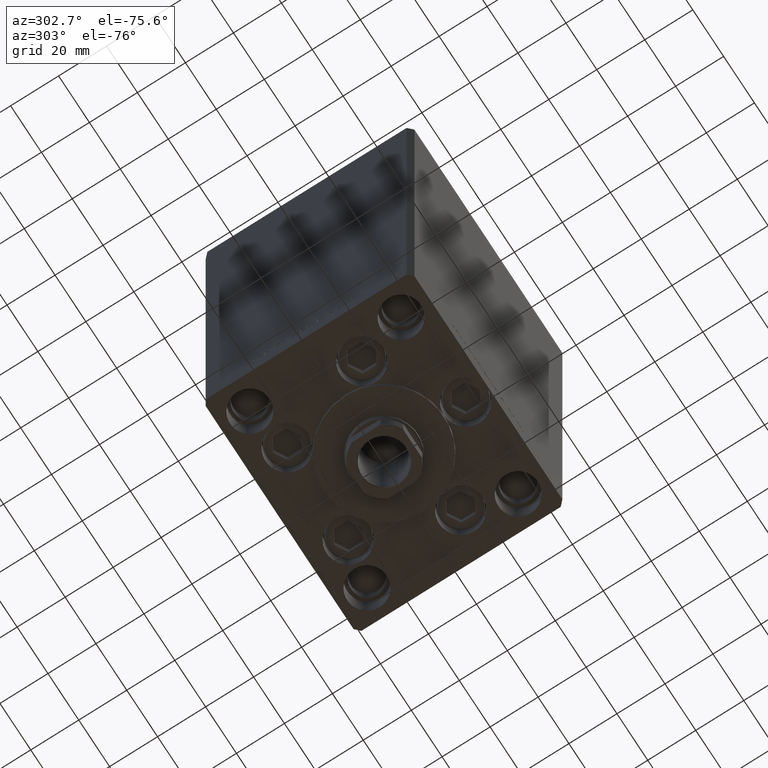
[diagram: clean part render]
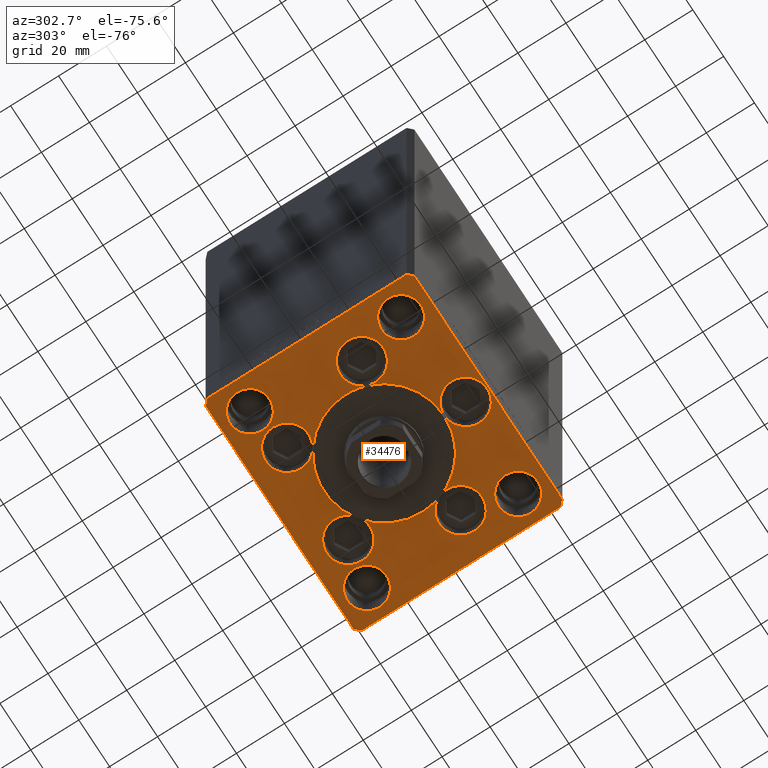
[diagram: same view with one face highlighted and labeled with its STEP entity id]
A machine part, auxiliary view. The second image highlights one B-rep face of the part: STEP entity #34476.
In plain terms, the highlighted planar face has unit normal (0, 0, -1).
Its self-contained STEP definition (entity closure, byte-faithful):
#78 = CARTESIAN_POINT ( 'NONE',  ( 38.00000000000000711, -31.50000000000000711, 0.000000000000000000 ) ) ;
#311 = CARTESIAN_POINT ( 'NONE',  ( 0.000000000000000000, 0.000000000000000000, 0.000000000000000000 ) ) ;
#435 = VECTOR ( 'NONE', #16392, 1000.000000000000000 ) ;
#843 = ORIENTED_EDGE ( 'NONE', *, *, #30643, .T. ) ;
#1183 = EDGE_CURVE ( 'NONE', #2028, #29542, #36587, .T. ) ;
#1202 = CIRCLE ( 'NONE', #40127, 8.250000000000000000 ) ;
#1228 = ORIENTED_EDGE ( 'NONE', *, *, #42391, .F. ) ;
#1289 = VERTEX_POINT ( 'NONE', #11761 ) ;
#1407 = EDGE_CURVE ( 'NONE', #6077, #37529, #37827, .T. ) ;
#1519 = DIRECTION ( 'NONE',  ( 0.000000000000000000, 0.000000000000000000, 1.000000000000000000 ) ) ;
#1593 = CARTESIAN_POINT ( 'NONE',  ( 0.000000000000000000, -34.00000000000000000, 0.000000000000000000 ) ) ;
#2012 = AXIS2_PLACEMENT_3D ( 'NONE', #12723, #38862, #31408 ) ;
#2028 = VERTEX_POINT ( 'NONE', #2693 ) ;
#2046 = VECTOR ( 'NONE', #27053, 1000.000000000000000 ) ;
#2312 = ORIENTED_EDGE ( 'NONE', *, *, #18062, .F. ) ;
#2693 = CARTESIAN_POINT ( 'NONE',  ( 46.25000000000000000, -31.50000000000000711, 0.000000000000000000 ) ) ;
#2702 = CIRCLE ( 'NONE', #18612, 8.250000000000000000 ) ;
#2859 = DIRECTION ( 'NONE',  ( 1.000000000000000000, 0.000000000000000000, 0.000000000000000000 ) ) ;
#2946 = AXIS2_PLACEMENT_3D ( 'NONE', #311, #45835, #11747 ) ;
#3104 = EDGE_CURVE ( 'NONE', #11535, #26076, #16265, .T. ) ;
#3183 = DIRECTION ( 'NONE',  ( 1.000000000000000000, 0.000000000000000000, 0.000000000000000000 ) ) ;
#3284 = CARTESIAN_POINT ( 'NONE',  ( -46.25000000000000000, 31.50000000000000000, 0.000000000000000000 ) ) ;
#3448 = DIRECTION ( 'NONE',  ( 1.000000000000000000, 0.000000000000000000, 0.000000000000000000 ) ) ;
#3584 = EDGE_CURVE ( 'NONE', #17269, #11535, #21025, .T. ) ;
#3978 = DIRECTION ( 'NONE',  ( 0.000000000000000000, 0.000000000000000000, 1.000000000000000000 ) ) ;
#4127 = DIRECTION ( 'NONE',  ( 0.000000000000000000, 0.000000000000000000, 1.000000000000000000 ) ) ;
#4385 = DIRECTION ( 'NONE',  ( 1.000000000000000000, 0.000000000000000000, 0.000000000000000000 ) ) ;
#4733 = EDGE_CURVE ( 'NONE', #11163, #5179, #2702, .T. ) ;
#4923 = CARTESIAN_POINT ( 'NONE',  ( 9.000000000000000000, -34.00000000000000000, 0.000000000000000000 ) ) ;
#4975 = CARTESIAN_POINT ( 'NONE',  ( -41.05550741379015989, -11.33333333333332682, 0.000000000000000000 ) ) ;
#5179 = VERTEX_POINT ( 'NONE', #17534 ) ;
#5208 = AXIS2_PLACEMENT_3D ( 'NONE', #11947, #27135, #30872 ) ;
#5214 = ORIENTED_EDGE ( 'NONE', *, *, #20766, .F. ) ;
#5337 = LINE ( 'NONE', #9065, #26223 ) ;
#5472 = ORIENTED_EDGE ( 'NONE', *, *, #29048, .T. ) ;
#5483 = AXIS2_PLACEMENT_3D ( 'NONE', #9711, #35844, #13438 ) ;
#5524 = AXIS2_PLACEMENT_3D ( 'NONE', #32899, #28915, #44337 ) ;
#5976 = DIRECTION ( 'NONE',  ( 1.000000000000000000, 0.000000000000000000, 0.000000000000000000 ) ) ;
#5995 = DIRECTION ( 'NONE',  ( 1.000000000000000000, 0.000000000000000000, 0.000000000000000000 ) ) ;
#6077 = VERTEX_POINT ( 'NONE', #41633 ) ;
#6481 = EDGE_CURVE ( 'NONE', #37621, #33386, #7507, .T. ) ;
#6597 = CARTESIAN_POINT ( 'NONE',  ( 0.000000000000000000, -6.938893903907228378E-15, 0.000000000000000000 ) ) ;
#6676 = VECTOR ( 'NONE', #37775, 1000.000000000000000 ) ;
#6697 = DIRECTION ( 'NONE',  ( 0.000000000000000000, 0.000000000000000000, 1.000000000000000000 ) ) ;
#6968 = DIRECTION ( 'NONE',  ( 1.000000000000000000, 0.000000000000000000, 0.000000000000000000 ) ) ;
#7032 = DIRECTION ( 'NONE',  ( 1.000000000000000000, 0.000000000000000000, 0.000000000000000000 ) ) ;
#7255 = DIRECTION ( 'NONE',  ( 0.7071067811865474617, 0.7071067811865474617, 0.000000000000000000 ) ) ;
#7275 = DIRECTION ( 'NONE',  ( 0.000000000000000000, 0.000000000000000000, 1.000000000000000000 ) ) ;
#7279 = VERTEX_POINT ( 'NONE', #31451 ) ;
#7306 = CARTESIAN_POINT ( 'NONE',  ( -28.82068048781374969, 27.62499999999998934, 0.000000000000000000 ) ) ;
#7419 = VERTEX_POINT ( 'NONE', #36065 ) ;
#7507 = CIRCLE ( 'NONE', #48055, 8.250000000000000000 ) ;
#7512 = AXIS2_PLACEMENT_3D ( 'NONE', #25437, #10480, #5995 ) ;
#7754 = FACE_BOUND ( 'NONE', #33850, .T. ) ;
#7883 = ORIENTED_EDGE ( 'NONE', *, *, #29764, .F. ) ;
#8045 = EDGE_CURVE ( 'NONE', #1289, #11095, #29066, .T. ) ;
#8231 = VERTEX_POINT ( 'NONE', #44071 ) ;
#8259 = DIRECTION ( 'NONE',  ( 1.000000000000000000, 0.000000000000000000, 0.000000000000000000 ) ) ;
#8326 = EDGE_CURVE ( 'NONE', #28037, #44730, #13161, .T. ) ;
#8403 = CIRCLE ( 'NONE', #31483, 25.00000000000000000 ) ;
#8449 = DIRECTION ( 'NONE',  ( 1.000000000000000000, 0.000000000000000000, 0.000000000000000000 ) ) ;
#8489 = FACE_OUTER_BOUND ( 'NONE', #20148, .T. ) ;
#8578 = DIRECTION ( 'NONE',  ( 0.000000000000000000, 0.000000000000000000, 1.000000000000000000 ) ) ;
#8709 = VERTEX_POINT ( 'NONE', #32523 ) ;
#8813 = EDGE_CURVE ( 'NONE', #45530, #42996, #24298, .T. ) ;
#9024 = CARTESIAN_POINT ( 'NONE',  ( -46.25000000000000711, -31.50000000000000711, 0.000000000000000000 ) ) ;
#9065 = CARTESIAN_POINT ( 'NONE',  ( 47.99999999999999289, 43.50000000000000000, 0.000000000000000000 ) ) ;
#9293 = DIRECTION ( 'NONE',  ( 0.000000000000000000, 0.000000000000000000, 1.000000000000000000 ) ) ;
#9459 = AXIS2_PLACEMENT_3D ( 'NONE', #19142, #24107, #23622 ) ;
#9660 = VERTEX_POINT ( 'NONE', #34471 ) ;
#9711 = CARTESIAN_POINT ( 'NONE',  ( 32.05550741379015989, -11.33333333333332860, 0.000000000000000000 ) ) ;
#9725 = DIRECTION ( 'NONE',  ( 1.000000000000000000, 0.000000000000000000, 0.000000000000000000 ) ) ;
#10083 = ORIENTED_EDGE ( 'NONE', *, *, #44489, .F. ) ;
#10276 = DIRECTION ( 'NONE',  ( 1.000000000000000000, 0.000000000000000000, 0.000000000000000000 ) ) ;
#10470 = AXIS2_PLACEMENT_3D ( 'NONE', #1593, #9293, #20751 ) ;
#10480 = DIRECTION ( 'NONE',  ( 0.000000000000000000, 0.000000000000000000, 1.000000000000000000 ) ) ;
#10481 = ORIENTED_EDGE ( 'NONE', *, *, #3584, .F. ) ;
#10719 = CARTESIAN_POINT ( 'NONE',  ( -48.00000000000000000, 43.49999999999997158, 0.000000000000000000 ) ) ;
#10723 = DIRECTION ( 'NONE',  ( 1.000000000000000000, 0.000000000000000000, 0.000000000000000000 ) ) ;
#10949 = ORIENTED_EDGE ( 'NONE', *, *, #31489, .F. ) ;
#11017 = DIRECTION ( 'NONE',  ( 0.000000000000000000, 0.000000000000000000, 1.000000000000000000 ) ) ;
#11095 = VERTEX_POINT ( 'NONE', #33886 ) ;
#11163 = VERTEX_POINT ( 'NONE', #3284 ) ;
#11535 = VERTEX_POINT ( 'NONE', #47663 ) ;
#11581 = LINE ( 'NONE', #15072, #39797 ) ;
#11585 = EDGE_CURVE ( 'NONE', #26076, #20339, #14064, .T. ) ;
#11747 = DIRECTION ( 'NONE',  ( 1.000000000000000000, 0.000000000000000000, 0.000000000000000000 ) ) ;
#11761 = CARTESIAN_POINT ( 'NONE',  ( 46.25000000000000000, 31.50000000000000000, 0.000000000000000000 ) ) ;
#11839 = DIRECTION ( 'NONE',  ( 1.000000000000000000, 0.000000000000000000, 0.000000000000000000 ) ) ;
#11947 = CARTESIAN_POINT ( 'NONE',  ( 19.82068048781374969, 27.62499999999998934, 0.000000000000000000 ) ) ;
#11958 = CARTESIAN_POINT ( 'NONE',  ( 0.000000000000000000, -34.00000000000000000, 0.000000000000000000 ) ) ;
#12093 = CARTESIAN_POINT ( 'NONE',  ( -23.05550741379015633, -11.33333333333332860, 0.000000000000000000 ) ) ;
#12188 = CARTESIAN_POINT ( 'NONE',  ( -50.00000000000000711, 41.49999999999999289, 0.000000000000000000 ) ) ;
#12352 = ORIENTED_EDGE ( 'NONE', *, *, #3104, .F. ) ;
#12355 = CIRCLE ( 'NONE', #5208, 8.999999999999998224 ) ;
#12605 = VERTEX_POINT ( 'NONE', #17007 ) ;
#12723 = CARTESIAN_POINT ( 'NONE',  ( 38.00000000000000000, 31.50000000000000000, 0.000000000000000000 ) ) ;
#13140 = LINE ( 'NONE', #36544, #435 ) ;
#13161 = CIRCLE ( 'NONE', #20309, 9.000000000000000000 ) ;
#13190 = EDGE_CURVE ( 'NONE', #14190, #17471, #38742, .T. ) ;
#13366 = AXIS2_PLACEMENT_3D ( 'NONE', #33282, #37252, #40976 ) ;
#13387 = ORIENTED_EDGE ( 'NONE', *, *, #42367, .F. ) ;
#13438 = DIRECTION ( 'NONE',  ( 1.000000000000000000, 0.000000000000000000, 0.000000000000000000 ) ) ;
#13507 = CARTESIAN_POINT ( 'NONE',  ( 10.82068048781375147, 27.62499999999998934, 0.000000000000000000 ) ) ;
#13834 = ORIENTED_EDGE ( 'NONE', *, *, #38762, .F. ) ;
#14064 = CIRCLE ( 'NONE', #20408, 9.000000000000000000 ) ;
#14190 = VERTEX_POINT ( 'NONE', #25177 ) ;
#14578 = DIRECTION ( 'NONE',  ( 1.000000000000000000, 0.000000000000000000, 0.000000000000000000 ) ) ;
#14982 = AXIS2_PLACEMENT_3D ( 'NONE', #29134, #19081, #5976 ) ;
#15072 = CARTESIAN_POINT ( 'NONE',  ( 50.00000000000000000, 41.50000000000000711, 0.000000000000000000 ) ) ;
#15178 = ORIENTED_EDGE ( 'NONE', *, *, #27459, .F. ) ;
#15188 = ORIENTED_EDGE ( 'NONE', *, *, #8045, .F. ) ;
#15433 = CARTESIAN_POINT ( 'NONE',  ( 32.05550741379015989, -11.33333333333332860, 0.000000000000000000 ) ) ;
#15620 = EDGE_CURVE ( 'NONE', #37529, #15842, #19414, .T. ) ;
#15842 = VERTEX_POINT ( 'NONE', #32846 ) ;
#16265 = CIRCLE ( 'NONE', #7512, 9.000000000000000000 ) ;
#16392 = DIRECTION ( 'NONE',  ( 0.000000000000000000, 1.000000000000000000, 0.000000000000000000 ) ) ;
#16942 = DIRECTION ( 'NONE',  ( 1.000000000000000000, 0.000000000000000000, 0.000000000000000000 ) ) ;
#17007 = CARTESIAN_POINT ( 'NONE',  ( 50.00000000000000000, 41.50000000000000711, 0.000000000000000000 ) ) ;
#17258 = CIRCLE ( 'NONE', #45067, 25.00000000000000000 ) ;
#17269 = VERTEX_POINT ( 'NONE', #48617 ) ;
#17385 = CARTESIAN_POINT ( 'NONE',  ( 0.000000000000000000, -6.938893903907228378E-15, 0.000000000000000000 ) ) ;
#17471 = VERTEX_POINT ( 'NONE', #18215 ) ;
#17534 = CARTESIAN_POINT ( 'NONE',  ( -29.75000000000000000, 31.50000000000000000, 0.000000000000000000 ) ) ;
#17540 = AXIS2_PLACEMENT_3D ( 'NONE', #48502, #6697, #3448 ) ;
#18062 = EDGE_CURVE ( 'NONE', #42996, #8231, #22130, .T. ) ;
#18215 = CARTESIAN_POINT ( 'NONE',  ( 23.57022603955158502, -8.333333333333332149, 0.000000000000000000 ) ) ;
#18218 = AXIS2_PLACEMENT_3D ( 'NONE', #44055, #32868, #43300 ) ;
#18462 = DIRECTION ( 'NONE',  ( 0.000000000000000000, 0.000000000000000000, 1.000000000000000000 ) ) ;
#18612 = AXIS2_PLACEMENT_3D ( 'NONE', #32040, #43463, #24573 ) ;
#18721 = FACE_BOUND ( 'NONE', #33940, .T. ) ;
#18736 = EDGE_LOOP ( 'NONE', ( #21705, #28134 ) ) ;
#19068 = AXIS2_PLACEMENT_3D ( 'NONE', #30765, #4127, #11839 ) ;
#19081 = DIRECTION ( 'NONE',  ( 0.000000000000000000, 0.000000000000000000, 1.000000000000000000 ) ) ;
#19142 = CARTESIAN_POINT ( 'NONE',  ( 38.00000000000000711, -31.50000000000000711, 0.000000000000000000 ) ) ;
#19174 = DIRECTION ( 'NONE',  ( 0.000000000000000000, 0.000000000000000000, 1.000000000000000000 ) ) ;
#19213 = FACE_BOUND ( 'NONE', #45546, .T. ) ;
#19414 = LINE ( 'NONE', #12188, #26119 ) ;
#19455 = VERTEX_POINT ( 'NONE', #40673 ) ;
#19739 = CIRCLE ( 'NONE', #14982, 8.250000000000000000 ) ;
#20068 = ORIENTED_EDGE ( 'NONE', *, *, #33193, .F. ) ;
#20148 = EDGE_LOOP ( 'NONE', ( #5472, #31657, #30149, #843, #45226, #41956, #38597, #24262 ) ) ;
#20170 = CIRCLE ( 'NONE', #23386, 8.999999999999998224 ) ;
#20309 = AXIS2_PLACEMENT_3D ( 'NONE', #41060, #3978, #6968 ) ;
#20339 = VERTEX_POINT ( 'NONE', #7306 ) ;
#20408 = AXIS2_PLACEMENT_3D ( 'NONE', #28513, #47406, #36962 ) ;
#20751 = DIRECTION ( 'NONE',  ( 1.000000000000000000, 0.000000000000000000, 0.000000000000000000 ) ) ;
#20766 = EDGE_CURVE ( 'NONE', #17471, #9660, #42038, .T. ) ;
#21025 = CIRCLE ( 'NONE', #27388, 25.00000000000000000 ) ;
#21388 = CIRCLE ( 'NONE', #18218, 8.250000000000000000 ) ;
#21459 = CIRCLE ( 'NONE', #23026, 25.00000000000000000 ) ;
#21502 = VECTOR ( 'NONE', #41068, 1000.000000000000000 ) ;
#21705 = ORIENTED_EDGE ( 'NONE', *, *, #1183, .F. ) ;
#21727 = CARTESIAN_POINT ( 'NONE',  ( 48.00000000000000711, -43.49999999999992184, 0.000000000000000000 ) ) ;
#22092 = ORIENTED_EDGE ( 'NONE', *, *, #39600, .F. ) ;
#22130 = CIRCLE ( 'NONE', #13366, 9.000000000000001776 ) ;
#22302 = EDGE_CURVE ( 'NONE', #28037, #17471, #26218, .T. ) ;
#22518 = ORIENTED_EDGE ( 'NONE', *, *, #37212, .F. ) ;
#22814 = ORIENTED_EDGE ( 'NONE', *, *, #30364, .F. ) ;
#22957 = PLANE ( 'NONE',  #2946 ) ;
#23026 = AXIS2_PLACEMENT_3D ( 'NONE', #26781, #8578, #38216 ) ;
#23386 = AXIS2_PLACEMENT_3D ( 'NONE', #28578, #28322, #39760 ) ;
#23622 = DIRECTION ( 'NONE',  ( 1.000000000000000000, 0.000000000000000000, 0.000000000000000000 ) ) ;
#23814 = EDGE_CURVE ( 'NONE', #20339, #11535, #32647, .T. ) ;
#24107 = DIRECTION ( 'NONE',  ( 0.000000000000000000, 0.000000000000000000, 1.000000000000000000 ) ) ;
#24262 = ORIENTED_EDGE ( 'NONE', *, *, #15620, .T. ) ;
#24298 = CIRCLE ( 'NONE', #43351, 9.000000000000001776 ) ;
#24573 = DIRECTION ( 'NONE',  ( 1.000000000000000000, 0.000000000000000000, 0.000000000000000000 ) ) ;
#25177 = CARTESIAN_POINT ( 'NONE',  ( 41.05550741379015989, -11.33333333333332860, 0.000000000000000000 ) ) ;
#25430 = ORIENTED_EDGE ( 'NONE', *, *, #28731, .F. ) ;
#25437 = CARTESIAN_POINT ( 'NONE',  ( -19.82068048781374969, 27.62499999999998934, 0.000000000000000000 ) ) ;
#25475 = LINE ( 'NONE', #21727, #47195 ) ;
#25592 = CIRCLE ( 'NONE', #10470, 9.000000000000000000 ) ;
#25952 = VERTEX_POINT ( 'NONE', #13507 ) ;
#26076 = VERTEX_POINT ( 'NONE', #38605 ) ;
#26119 = VECTOR ( 'NONE', #46287, 1000.000000000000000 ) ;
#26218 = CIRCLE ( 'NONE', #46062, 25.00000000000000000 ) ;
#26223 = VECTOR ( 'NONE', #35707, 1000.000000000000000 ) ;
#26662 = ORIENTED_EDGE ( 'NONE', *, *, #28700, .F. ) ;
#26781 = CARTESIAN_POINT ( 'NONE',  ( 0.000000000000000000, -6.938893903907228378E-15, 0.000000000000000000 ) ) ;
#26984 = ORIENTED_EDGE ( 'NONE', *, *, #8326, .F. ) ;
#27053 = DIRECTION ( 'NONE',  ( 1.000000000000000000, 1.156482317317871331E-15, 0.000000000000000000 ) ) ;
#27135 = DIRECTION ( 'NONE',  ( 0.000000000000000000, 0.000000000000000000, 1.000000000000000000 ) ) ;
#27388 = AXIS2_PLACEMENT_3D ( 'NONE', #38626, #7275, #8259 ) ;
#27459 = EDGE_CURVE ( 'NONE', #44730, #37740, #25592, .T. ) ;
#27615 = CARTESIAN_POINT ( 'NONE',  ( 0.000000000000000000, -25.00000000000000000, 0.000000000000000000 ) ) ;
#28037 = VERTEX_POINT ( 'NONE', #27615 ) ;
#28134 = ORIENTED_EDGE ( 'NONE', *, *, #44739, .F. ) ;
#28322 = DIRECTION ( 'NONE',  ( 0.000000000000000000, 0.000000000000000000, 1.000000000000000000 ) ) ;
#28449 = CIRCLE ( 'NONE', #34802, 9.000000000000001776 ) ;
#28513 = CARTESIAN_POINT ( 'NONE',  ( -19.82068048781374969, 27.62499999999998934, 0.000000000000000000 ) ) ;
#28578 = CARTESIAN_POINT ( 'NONE',  ( 19.82068048781374969, 27.62499999999998934, 0.000000000000000000 ) ) ;
#28700 = EDGE_CURVE ( 'NONE', #9660, #14190, #37533, .T. ) ;
#28731 = EDGE_CURVE ( 'NONE', #37740, #28037, #35931, .T. ) ;
#28770 = ORIENTED_EDGE ( 'NONE', *, *, #4733, .F. ) ;
#28915 = DIRECTION ( 'NONE',  ( 0.000000000000000000, 0.000000000000000000, 1.000000000000000000 ) ) ;
#29048 = EDGE_CURVE ( 'NONE', #15842, #39706, #41022, .T. ) ;
#29066 = CIRCLE ( 'NONE', #2012, 8.250000000000000000 ) ;
#29134 = CARTESIAN_POINT ( 'NONE',  ( -38.00000000000000711, -31.50000000000000711, 0.000000000000000000 ) ) ;
#29179 = EDGE_CURVE ( 'NONE', #7419, #48497, #25475, .T. ) ;
#29323 = CIRCLE ( 'NONE', #42824, 8.999999999999998224 ) ;
#29448 = CARTESIAN_POINT ( 'NONE',  ( 32.05550741379015989, -11.33333333333332860, 0.000000000000000000 ) ) ;
#29542 = VERTEX_POINT ( 'NONE', #41045 ) ;
#29638 = CARTESIAN_POINT ( 'NONE',  ( -48.00000000000000711, -43.50000000000002842, 0.000000000000000000 ) ) ;
#29675 = ORIENTED_EDGE ( 'NONE', *, *, #8813, .F. ) ;
#29764 = EDGE_CURVE ( 'NONE', #17269, #45014, #20170, .T. ) ;
#29869 = CARTESIAN_POINT ( 'NONE',  ( -9.000000000000000000, -34.00000000000000000, 0.000000000000000000 ) ) ;
#30056 = CARTESIAN_POINT ( 'NONE',  ( 28.82068048781374969, 27.62499999999998934, 0.000000000000000000 ) ) ;
#30149 = ORIENTED_EDGE ( 'NONE', *, *, #29179, .T. ) ;
#30299 = LINE ( 'NONE', #38719, #2046 ) ;
#30364 = EDGE_CURVE ( 'NONE', #11095, #1289, #1202, .T. ) ;
#30401 = ORIENTED_EDGE ( 'NONE', *, *, #34790, .F. ) ;
#30575 = DIRECTION ( 'NONE',  ( 0.000000000000000000, 0.000000000000000000, 1.000000000000000000 ) ) ;
#30643 = EDGE_CURVE ( 'NONE', #48497, #12605, #13140, .T. ) ;
#30677 = FACE_BOUND ( 'NONE', #18736, .T. ) ;
#30765 = CARTESIAN_POINT ( 'NONE',  ( 0.000000000000000000, -6.938893903907228378E-15, 0.000000000000000000 ) ) ;
#30872 = DIRECTION ( 'NONE',  ( 1.000000000000000000, 0.000000000000000000, 0.000000000000000000 ) ) ;
#30931 = FACE_BOUND ( 'NONE', #40839, .T. ) ;
#30954 = CIRCLE ( 'NONE', #9459, 8.249999999999992895 ) ;
#31400 = CARTESIAN_POINT ( 'NONE',  ( 19.82068048781374969, 27.62499999999998934, 0.000000000000000000 ) ) ;
#31408 = DIRECTION ( 'NONE',  ( 1.000000000000000000, 0.000000000000000000, 0.000000000000000000 ) ) ;
#31451 = CARTESIAN_POINT ( 'NONE',  ( 25.00000000000000000, -3.877276906038844941E-15, 0.000000000000000000 ) ) ;
#31483 = AXIS2_PLACEMENT_3D ( 'NONE', #6597, #36957, #2859 ) ;
#31489 = EDGE_CURVE ( 'NONE', #25952, #17269, #12355, .T. ) ;
#31657 = ORIENTED_EDGE ( 'NONE', *, *, #32840, .T. ) ;
#31854 = DIRECTION ( 'NONE',  ( 0.000000000000000000, 0.000000000000000000, 1.000000000000000000 ) ) ;
#31891 = DIRECTION ( 'NONE',  ( 0.000000000000000000, 0.000000000000000000, 1.000000000000000000 ) ) ;
#32040 = CARTESIAN_POINT ( 'NONE',  ( -38.00000000000000000, 31.50000000000000000, 0.000000000000000000 ) ) ;
#32523 = CARTESIAN_POINT ( 'NONE',  ( 47.99999999999999289, 43.50000000000000000, 0.000000000000000000 ) ) ;
#32619 = AXIS2_PLACEMENT_3D ( 'NONE', #78, #11017, #7032 ) ;
#32647 = CIRCLE ( 'NONE', #17540, 9.000000000000000000 ) ;
#32840 = EDGE_CURVE ( 'NONE', #39706, #7419, #30299, .T. ) ;
#32846 = CARTESIAN_POINT ( 'NONE',  ( -50.00000000000000000, -41.50000000000004263, 0.000000000000000000 ) ) ;
#32868 = DIRECTION ( 'NONE',  ( 0.000000000000000000, 0.000000000000000000, 1.000000000000000000 ) ) ;
#32899 = CARTESIAN_POINT ( 'NONE',  ( 0.000000000000000000, -6.938893903907228378E-15, 0.000000000000000000 ) ) ;
#33193 = EDGE_CURVE ( 'NONE', #8231, #28037, #8403, .T. ) ;
#33282 = CARTESIAN_POINT ( 'NONE',  ( -32.05550741379015989, -11.33333333333332860, 0.000000000000000000 ) ) ;
#33386 = VERTEX_POINT ( 'NONE', #9024 ) ;
#33850 = EDGE_LOOP ( 'NONE', ( #10083, #28770 ) ) ;
#33886 = CARTESIAN_POINT ( 'NONE',  ( 29.74999999999999645, 31.50000000000000000, 0.000000000000000000 ) ) ;
#33940 = EDGE_LOOP ( 'NONE', ( #15188, #22814 ) ) ;
#34047 = CARTESIAN_POINT ( 'NONE',  ( -50.00000000000000000, -41.50000000000004263, 0.000000000000000000 ) ) ;
#34162 = CIRCLE ( 'NONE', #19068, 25.00000000000000000 ) ;
#34231 = DIRECTION ( 'NONE',  ( -0.7071067811865512365, 0.7071067811865439090, 0.000000000000000000 ) ) ;
#34471 = CARTESIAN_POINT ( 'NONE',  ( 23.05550741379015633, -11.33333333333332682, 0.000000000000000000 ) ) ;
#34476 = ADVANCED_FACE ( 'NONE', ( #19213, #18721, #7754, #30931, #30677, #8489 ), #22957, .T. ) ;
#34503 = CARTESIAN_POINT ( 'NONE',  ( 0.000000000000000000, -6.938893903907228378E-15, 0.000000000000000000 ) ) ;
#34790 = EDGE_CURVE ( 'NONE', #19455, #8231, #17258, .T. ) ;
#34802 = AXIS2_PLACEMENT_3D ( 'NONE', #39000, #30575, #45735 ) ;
#34900 = ORIENTED_EDGE ( 'NONE', *, *, #6481, .F. ) ;
#35707 = DIRECTION ( 'NONE',  ( -1.000000000000000000, -2.891205793294678326E-16, 0.000000000000000000 ) ) ;
#35844 = DIRECTION ( 'NONE',  ( 0.000000000000000000, 0.000000000000000000, 1.000000000000000000 ) ) ;
#35931 = CIRCLE ( 'NONE', #36757, 9.000000000000000000 ) ;
#36065 = CARTESIAN_POINT ( 'NONE',  ( 48.00000000000000711, -43.49999999999992184, 0.000000000000000000 ) ) ;
#36544 = CARTESIAN_POINT ( 'NONE',  ( 50.00000000000000000, -41.49999999999992895, 0.000000000000000000 ) ) ;
#36587 = CIRCLE ( 'NONE', #32619, 8.249999999999992895 ) ;
#36757 = AXIS2_PLACEMENT_3D ( 'NONE', #11958, #31854, #8449 ) ;
#36957 = DIRECTION ( 'NONE',  ( 0.000000000000000000, 0.000000000000000000, 1.000000000000000000 ) ) ;
#36962 = DIRECTION ( 'NONE',  ( 1.000000000000000000, 0.000000000000000000, 0.000000000000000000 ) ) ;
#37212 = EDGE_CURVE ( 'NONE', #8231, #45530, #28449, .T. ) ;
#37252 = DIRECTION ( 'NONE',  ( 0.000000000000000000, 0.000000000000000000, 1.000000000000000000 ) ) ;
#37369 = CARTESIAN_POINT ( 'NONE',  ( -38.00000000000000711, -31.50000000000000711, 0.000000000000000000 ) ) ;
#37529 = VERTEX_POINT ( 'NONE', #43793 ) ;
#37533 = CIRCLE ( 'NONE', #48642, 9.000000000000001776 ) ;
#37557 = CARTESIAN_POINT ( 'NONE',  ( -29.75000000000000711, -31.50000000000000711, 0.000000000000000000 ) ) ;
#37621 = VERTEX_POINT ( 'NONE', #37557 ) ;
#37698 = CARTESIAN_POINT ( 'NONE',  ( -32.05550741379015989, -11.33333333333332860, 0.000000000000000000 ) ) ;
#37740 = VERTEX_POINT ( 'NONE', #4923 ) ;
#37775 = DIRECTION ( 'NONE',  ( 0.7071067811865487940, -0.7071067811865463515, 0.000000000000000000 ) ) ;
#37827 = LINE ( 'NONE', #10719, #21502 ) ;
#38216 = DIRECTION ( 'NONE',  ( 1.000000000000000000, 0.000000000000000000, 0.000000000000000000 ) ) ;
#38597 = ORIENTED_EDGE ( 'NONE', *, *, #1407, .T. ) ;
#38605 = CARTESIAN_POINT ( 'NONE',  ( -10.82068048781375147, 27.62499999999998934, 0.000000000000000000 ) ) ;
#38626 = CARTESIAN_POINT ( 'NONE',  ( 0.000000000000000000, -6.938893903907228378E-15, 0.000000000000000000 ) ) ;
#38719 = CARTESIAN_POINT ( 'NONE',  ( -48.00000000000000711, -43.50000000000002842, 0.000000000000000000 ) ) ;
#38742 = CIRCLE ( 'NONE', #44297, 9.000000000000001776 ) ;
#38762 = EDGE_CURVE ( 'NONE', #33386, #37621, #19739, .T. ) ;
#38862 = DIRECTION ( 'NONE',  ( 0.000000000000000000, 0.000000000000000000, 1.000000000000000000 ) ) ;
#38924 = CIRCLE ( 'NONE', #5524, 25.00000000000000000 ) ;
#39000 = CARTESIAN_POINT ( 'NONE',  ( -32.05550741379015989, -11.33333333333332860, 0.000000000000000000 ) ) ;
#39600 = EDGE_CURVE ( 'NONE', #45014, #25952, #29323, .T. ) ;
#39706 = VERTEX_POINT ( 'NONE', #29638 ) ;
#39760 = DIRECTION ( 'NONE',  ( 1.000000000000000000, 0.000000000000000000, 0.000000000000000000 ) ) ;
#39797 = VECTOR ( 'NONE', #34231, 999.9999999999998863 ) ;
#40127 = AXIS2_PLACEMENT_3D ( 'NONE', #43814, #1519, #9725 ) ;
#40673 = CARTESIAN_POINT ( 'NONE',  ( -25.00000000000000000, -6.938893903907228378E-15, 0.000000000000000000 ) ) ;
#40765 = DIRECTION ( 'NONE',  ( 0.000000000000000000, 0.000000000000000000, 1.000000000000000000 ) ) ;
#40839 = EDGE_LOOP ( 'NONE', ( #34900, #13834 ) ) ;
#40976 = DIRECTION ( 'NONE',  ( 1.000000000000000000, 0.000000000000000000, 0.000000000000000000 ) ) ;
#41022 = LINE ( 'NONE', #34047, #6676 ) ;
#41045 = CARTESIAN_POINT ( 'NONE',  ( 29.75000000000001066, -31.50000000000000711, 0.000000000000000000 ) ) ;
#41060 = CARTESIAN_POINT ( 'NONE',  ( 0.000000000000000000, -34.00000000000000000, 0.000000000000000000 ) ) ;
#41068 = DIRECTION ( 'NONE',  ( -0.7071067811865536790, -0.7071067811865414665, 0.000000000000000000 ) ) ;
#41633 = CARTESIAN_POINT ( 'NONE',  ( -48.00000000000000000, 43.49999999999997158, 0.000000000000000000 ) ) ;
#41661 = ORIENTED_EDGE ( 'NONE', *, *, #13190, .F. ) ;
#41955 = DIRECTION ( 'NONE',  ( 0.000000000000000000, 0.000000000000000000, 1.000000000000000000 ) ) ;
#41956 = ORIENTED_EDGE ( 'NONE', *, *, #42521, .T. ) ;
#42038 = CIRCLE ( 'NONE', #5483, 9.000000000000001776 ) ;
#42068 = EDGE_CURVE ( 'NONE', #17471, #7279, #38924, .T. ) ;
#42367 = EDGE_CURVE ( 'NONE', #11535, #19455, #21459, .T. ) ;
#42391 = EDGE_CURVE ( 'NONE', #7279, #17269, #34162, .T. ) ;
#42521 = EDGE_CURVE ( 'NONE', #8709, #6077, #5337, .T. ) ;
#42824 = AXIS2_PLACEMENT_3D ( 'NONE', #31400, #31891, #16942 ) ;
#42996 = VERTEX_POINT ( 'NONE', #12093 ) ;
#43210 = CARTESIAN_POINT ( 'NONE',  ( 50.00000000000000000, -41.49999999999992895, 0.000000000000000000 ) ) ;
#43300 = DIRECTION ( 'NONE',  ( 1.000000000000000000, 0.000000000000000000, 0.000000000000000000 ) ) ;
#43351 = AXIS2_PLACEMENT_3D ( 'NONE', #37698, #45175, #14578 ) ;
#43463 = DIRECTION ( 'NONE',  ( 0.000000000000000000, 0.000000000000000000, 1.000000000000000000 ) ) ;
#43793 = CARTESIAN_POINT ( 'NONE',  ( -50.00000000000000711, 41.49999999999999289, 0.000000000000000000 ) ) ;
#43814 = CARTESIAN_POINT ( 'NONE',  ( 38.00000000000000000, 31.50000000000000000, 0.000000000000000000 ) ) ;
#44055 = CARTESIAN_POINT ( 'NONE',  ( -38.00000000000000000, 31.50000000000000000, 0.000000000000000000 ) ) ;
#44071 = CARTESIAN_POINT ( 'NONE',  ( -23.57022603955158502, -8.333333333333332149, 0.000000000000000000 ) ) ;
#44297 = AXIS2_PLACEMENT_3D ( 'NONE', #29448, #48086, #10276 ) ;
#44337 = DIRECTION ( 'NONE',  ( 1.000000000000000000, 0.000000000000000000, 0.000000000000000000 ) ) ;
#44489 = EDGE_CURVE ( 'NONE', #5179, #11163, #21388, .T. ) ;
#44730 = VERTEX_POINT ( 'NONE', #29869 ) ;
#44739 = EDGE_CURVE ( 'NONE', #29542, #2028, #30954, .T. ) ;
#44912 = ORIENTED_EDGE ( 'NONE', *, *, #11585, .F. ) ;
#45014 = VERTEX_POINT ( 'NONE', #30056 ) ;
#45067 = AXIS2_PLACEMENT_3D ( 'NONE', #17385, #40765, #3183 ) ;
#45175 = DIRECTION ( 'NONE',  ( 0.000000000000000000, 0.000000000000000000, 1.000000000000000000 ) ) ;
#45226 = ORIENTED_EDGE ( 'NONE', *, *, #48661, .T. ) ;
#45530 = VERTEX_POINT ( 'NONE', #4975 ) ;
#45546 = EDGE_LOOP ( 'NONE', ( #10481, #10949, #22092, #7883, #1228, #48639, #41661, #26662, #5214, #48787, #25430, #15178, #26984, #20068, #2312, #29675, #22518, #30401, #13387, #46859, #44912, #12352 ) ) ;
#45735 = DIRECTION ( 'NONE',  ( 1.000000000000000000, 0.000000000000000000, 0.000000000000000000 ) ) ;
#45835 = DIRECTION ( 'NONE',  ( -0.000000000000000000, 0.000000000000000000, 1.000000000000000000 ) ) ;
#46062 = AXIS2_PLACEMENT_3D ( 'NONE', #34503, #41955, #4385 ) ;
#46287 = DIRECTION ( 'NONE',  ( 8.360113137237620037E-17, -1.000000000000000000, 0.000000000000000000 ) ) ;
#46859 = ORIENTED_EDGE ( 'NONE', *, *, #23814, .F. ) ;
#47195 = VECTOR ( 'NONE', #7255, 1000.000000000000114 ) ;
#47406 = DIRECTION ( 'NONE',  ( 0.000000000000000000, 0.000000000000000000, 1.000000000000000000 ) ) ;
#47663 = CARTESIAN_POINT ( 'NONE',  ( -14.57402977045128978, 20.31249999999999289, 0.000000000000000000 ) ) ;
#48055 = AXIS2_PLACEMENT_3D ( 'NONE', #37369, #18462, #48793 ) ;
#48086 = DIRECTION ( 'NONE',  ( 0.000000000000000000, 0.000000000000000000, 1.000000000000000000 ) ) ;
#48497 = VERTEX_POINT ( 'NONE', #43210 ) ;
#48502 = CARTESIAN_POINT ( 'NONE',  ( -19.82068048781374969, 27.62499999999998934, 0.000000000000000000 ) ) ;
#48617 = CARTESIAN_POINT ( 'NONE',  ( 14.57402977045128623, 20.31249999999998579, 0.000000000000000000 ) ) ;
#48639 = ORIENTED_EDGE ( 'NONE', *, *, #42068, .F. ) ;
#48642 = AXIS2_PLACEMENT_3D ( 'NONE', #15433, #19174, #10723 ) ;
#48661 = EDGE_CURVE ( 'NONE', #12605, #8709, #11581, .T. ) ;
#48787 = ORIENTED_EDGE ( 'NONE', *, *, #22302, .F. ) ;
#48793 = DIRECTION ( 'NONE',  ( 1.000000000000000000, 0.000000000000000000, 0.000000000000000000 ) ) ;